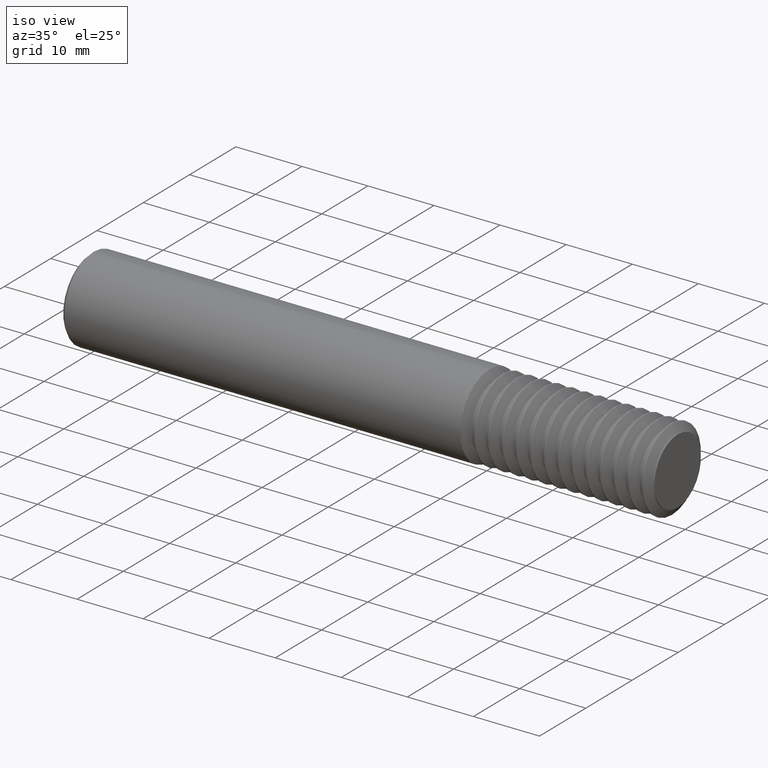
[diagram: clean part render]
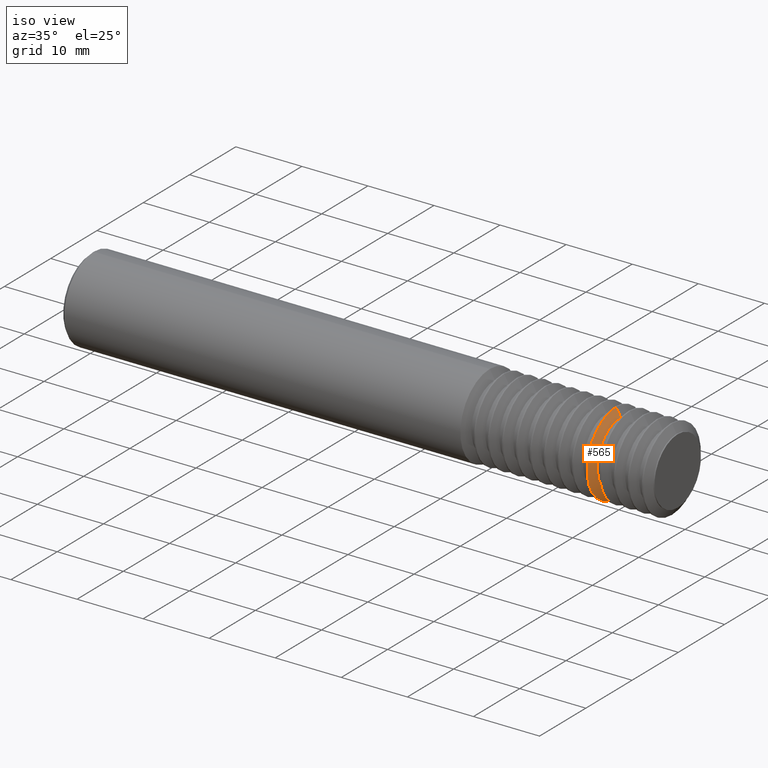
[diagram: same view with one face highlighted and labeled with its STEP entity id]
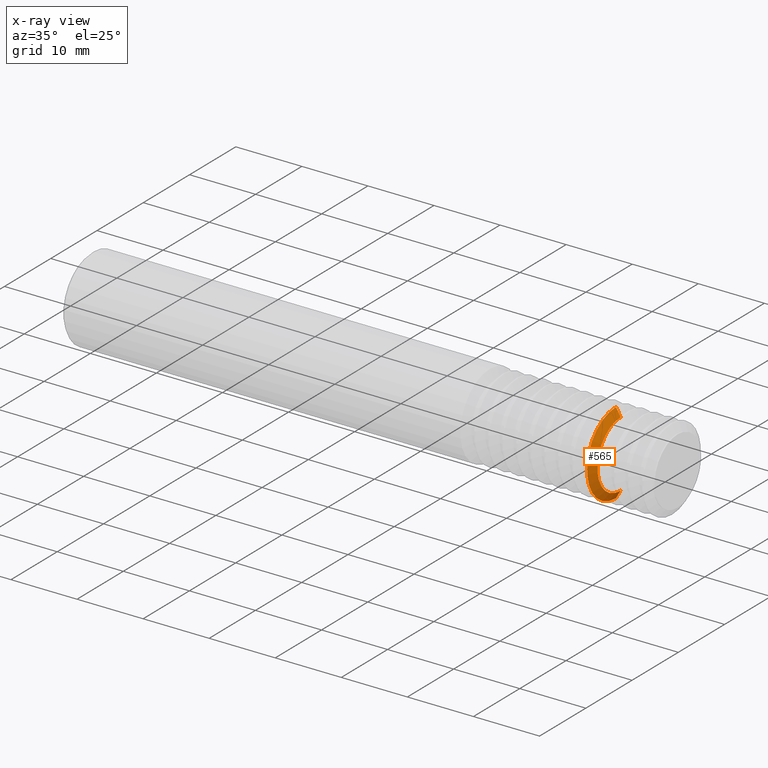
[diagram: x-ray of the same camera — body ghosted, the highlighted face saturated]
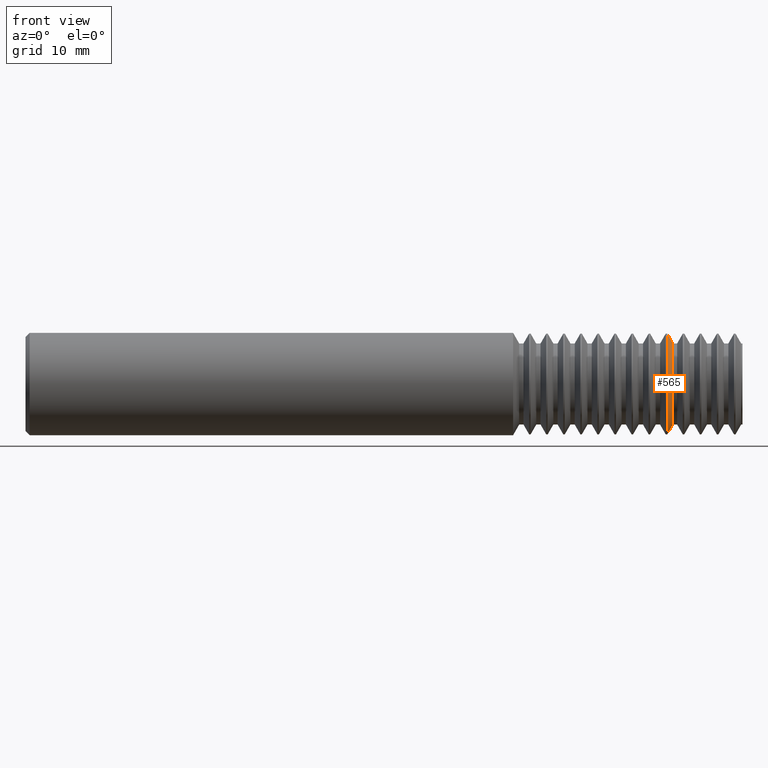
[diagram: same view with one face highlighted and labeled with its STEP entity id]
A machine part, iso view. The second image highlights one B-rep face of the part: STEP entity #565.
The next image is the same camera in x-ray: the body ghosted, the highlighted face saturated — about 0% of this face is hidden behind the body in this view.
A second angle (front view) of the same face is appended — the face is thin or edge-on in the first view.
In plain terms, the highlighted conical surface has half-angle 60.2 deg.
Its self-contained STEP definition (entity closure, byte-faithful):
#10 = CARTESIAN_POINT ( 'NONE',  ( 3.132266666666666755, 0.000000000000000000, 0.000000000000000000 ) ) ;
#84 = CARTESIAN_POINT ( 'NONE',  ( 3.159833333333332828, 2.717894686365593704E-17, -0.1978658865981437198 ) ) ;
#97 = CARTESIAN_POINT ( 'NONE',  ( 3.159833333333332828, 0.000000000000000000, 0.000000000000000000 ) ) ;
#101 = VECTOR ( 'NONE', #858, 39.37007874015748143 ) ;
#321 = CIRCLE ( 'NONE', #1650, 0.2459999999999999964 ) ;
#535 = VECTOR ( 'NONE', #1942, 39.37007874015748143 ) ;
#565 = ADVANCED_FACE ( 'NONE', ( #2226 ), #1147, .T. ) ;
#592 = DIRECTION ( 'NONE',  ( -1.000000000000000000, -0.000000000000000000, -0.000000000000000000 ) ) ;
#661 = LINE ( 'NONE', #1507, #101 ) ;
#693 = CARTESIAN_POINT ( 'NONE',  ( 3.132266666666666755, 3.012631125902488382E-17, -0.2459999999999999964 ) ) ;
#754 = CARTESIAN_POINT ( 'NONE',  ( 3.132266666666666755, 0.000000000000000000, 0.2459999999999999964 ) ) ;
#774 = ORIENTED_EDGE ( 'NONE', *, *, #2547, .T. ) ;
#820 = VERTEX_POINT ( 'NONE', #754 ) ;
#853 = EDGE_LOOP ( 'NONE', ( #1946, #774, #1156, #2140 ) ) ;
#858 = DIRECTION ( 'NONE',  ( -0.4969739610275520914, 1.062706184878912255E-16, -0.8677654533689302951 ) ) ;
#860 = AXIS2_PLACEMENT_3D ( 'NONE', #1040, #1268, #2672 ) ;
#867 = VERTEX_POINT ( 'NONE', #84 ) ;
#1018 = DIRECTION ( 'NONE',  ( 0.000000000000000000, 0.000000000000000000, 1.000000000000000000 ) ) ;
#1040 = CARTESIAN_POINT ( 'NONE',  ( 3.120812558667825254, 0.000000000000000000, 0.000000000000000000 ) ) ;
#1055 = VERTEX_POINT ( 'NONE', #2391 ) ;
#1147 = CONICAL_SURFACE ( 'NONE', #860, 0.2659999999999999587, 1.050688209700590070 ) ;
#1156 = ORIENTED_EDGE ( 'NONE', *, *, #2569, .T. ) ;
#1201 = CIRCLE ( 'NONE', #1871, 0.1978658865981437198 ) ;
#1210 = EDGE_CURVE ( 'NONE', #820, #2183, #321, .T. ) ;
#1263 = LINE ( 'NONE', #2339, #535 ) ;
#1268 = DIRECTION ( 'NONE',  ( -1.000000000000000000, -0.000000000000000000, -0.000000000000000000 ) ) ;
#1507 = CARTESIAN_POINT ( 'NONE',  ( 3.120812558667825254, 3.257560485731959097E-17, -0.2659999999999999587 ) ) ;
#1650 = AXIS2_PLACEMENT_3D ( 'NONE', #10, #1881, #2778 ) ;
#1871 = AXIS2_PLACEMENT_3D ( 'NONE', #97, #592, #1018 ) ;
#1881 = DIRECTION ( 'NONE',  ( 1.000000000000000000, 0.000000000000000000, 0.000000000000000000 ) ) ;
#1935 = EDGE_CURVE ( 'NONE', #867, #2183, #661, .T. ) ;
#1942 = DIRECTION ( 'NONE',  ( -0.4969739610275520914, 0.000000000000000000, 0.8677654533689302951 ) ) ;
#1946 = ORIENTED_EDGE ( 'NONE', *, *, #1935, .F. ) ;
#2140 = ORIENTED_EDGE ( 'NONE', *, *, #1210, .T. ) ;
#2183 = VERTEX_POINT ( 'NONE', #693 ) ;
#2226 = FACE_OUTER_BOUND ( 'NONE', #853, .T. ) ;
#2339 = CARTESIAN_POINT ( 'NONE',  ( 3.120812558667825254, 0.000000000000000000, 0.2659999999999999587 ) ) ;
#2391 = CARTESIAN_POINT ( 'NONE',  ( 3.159833333333332828, 0.000000000000000000, 0.1978658865981437198 ) ) ;
#2547 = EDGE_CURVE ( 'NONE', #867, #1055, #1201, .T. ) ;
#2569 = EDGE_CURVE ( 'NONE', #1055, #820, #1263, .T. ) ;
#2672 = DIRECTION ( 'NONE',  ( 0.000000000000000000, 0.000000000000000000, 1.000000000000000000 ) ) ;
#2778 = DIRECTION ( 'NONE',  ( 0.000000000000000000, 0.000000000000000000, 1.000000000000000000 ) ) ;